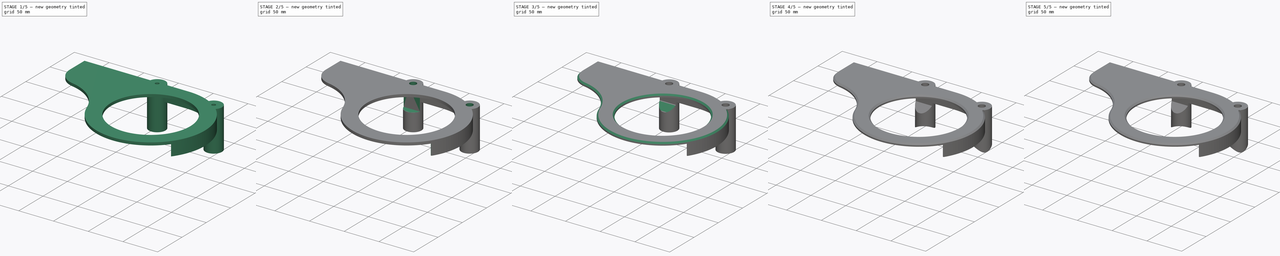
[diagram: build sequence overview — one tinted view per stage of 5, left to right]
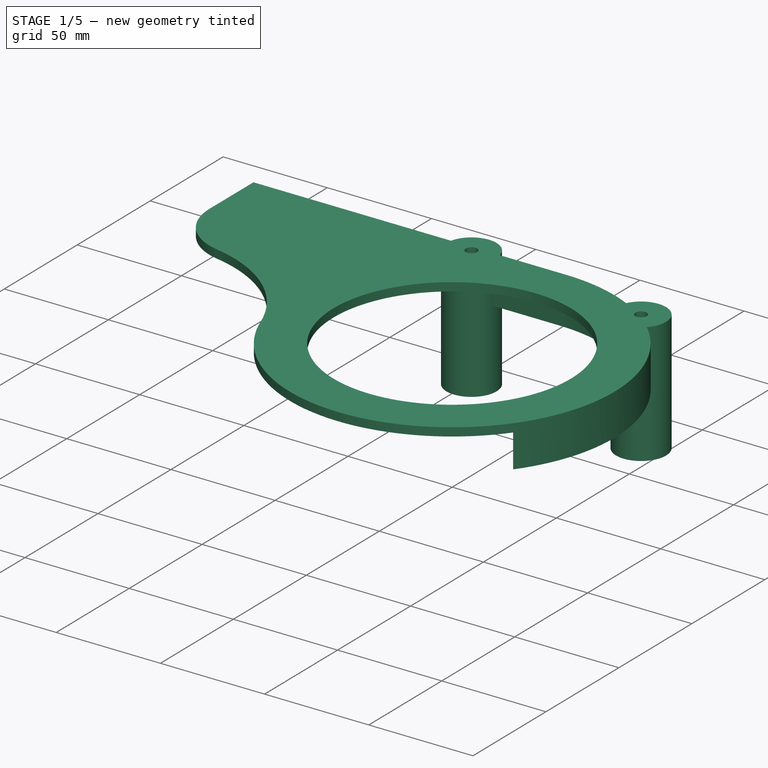
[diagram: stage 1 of 5 — iso view after this stage's code; geometry added in this stage tinted green]
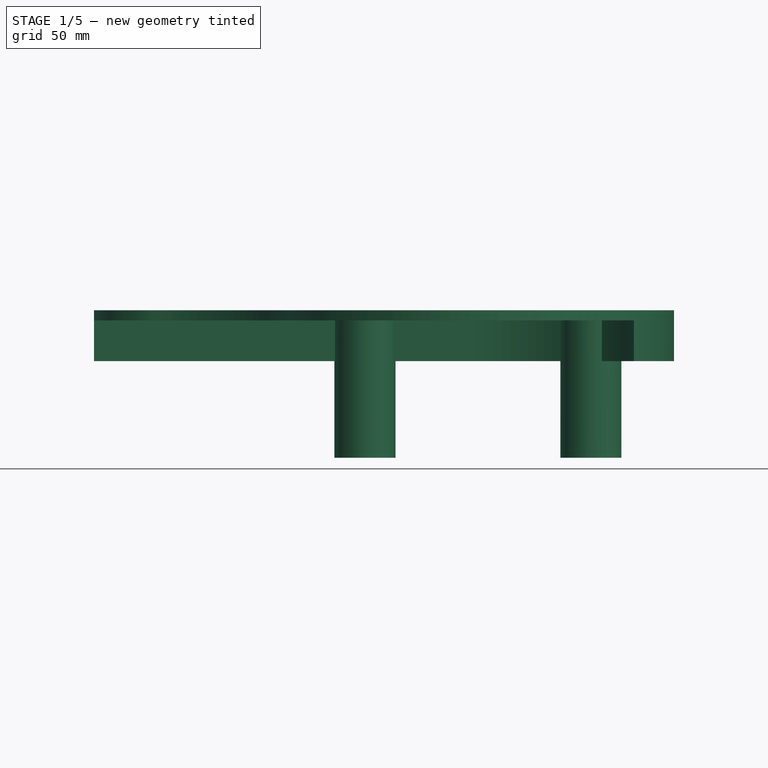
[diagram: stage 1 of 5 — front view after this stage's code; geometry added in this stage tinted green]
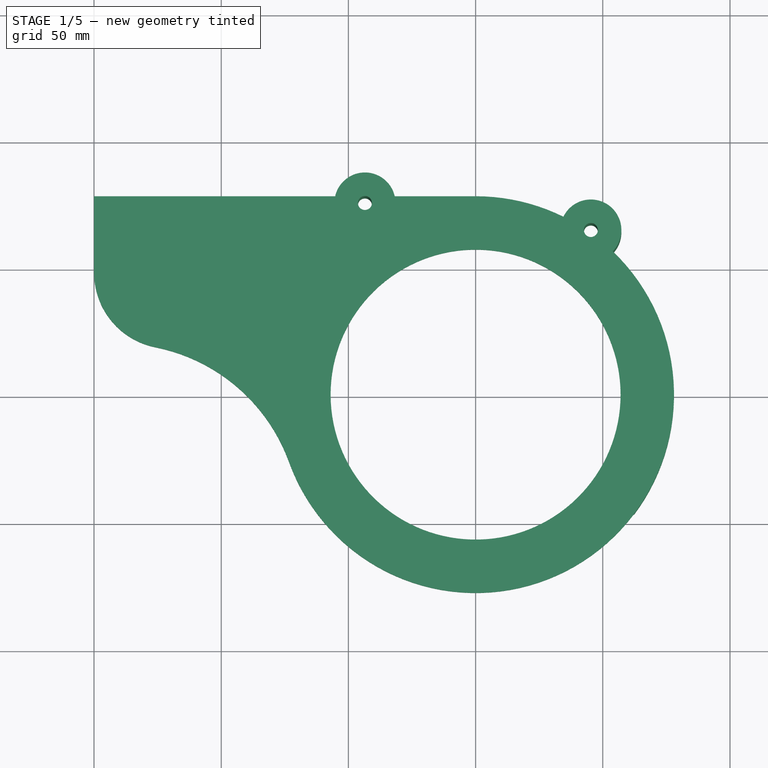
[diagram: stage 1 of 5 — top view after this stage's code; geometry added in this stage tinted green]
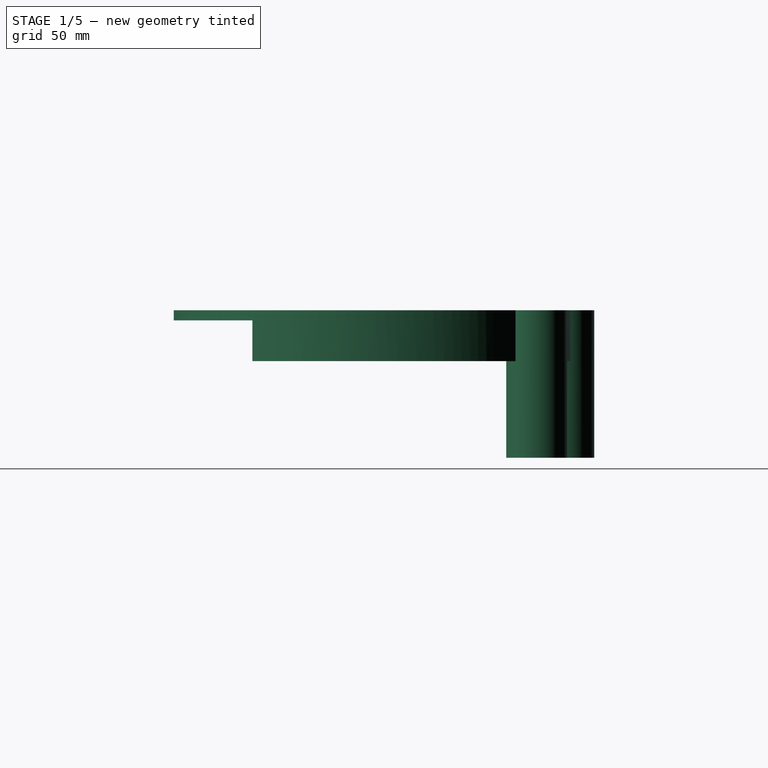
[diagram: stage 1 of 5 — right view after this stage's code; geometry added in this stage tinted green]
FCSTD DOCUMENT  (FreeCAD 0.19R)
Label: R5
License: All rights reserved
LicenseURL: http://en.wikipedia.org/wiki/All_rights_reserved
objects: Sketcher::SketchObject×8, PartDesign::Pocket×6, Part::Cylinder×4, PartDesign::Chamfer×4, PartDesign::Pad×2, Part::MultiFuse×2, Part::Cut×2, PartDesign::Fillet×1, PartDesign::Body×1
note: 43 computed .brp shape members not serialized (recipe doc carries the construction recipe); baked Part::Feature solids carry a one-line shape summary decoded from their .brp

FEATURE [Sketcher::SketchObject] Sketch
  FullyConstrained = true
  MapMode = 5
  Support = -> [XY_Plane]
  sketch-geometry (10):
    g0: LineSegment StartX=0 StartY=0 StartZ=0 EndX=121.094 EndY=169.768 EndZ=0
    g1: LineSegment StartX=-81.2548 StartY=143.617 StartZ=0 EndX=0 EndY=0 EndZ=0
    g2: Circle CenterX=0 CenterY=0 CenterZ=0 NormalX=0 NormalY=0 NormalZ=1 AngleXU=0 Radius=73
    g3: LineSegment StartX=-228.06 StartY=73 StartZ=0 EndX=0 EndY=73 EndZ=0
    g4: LineSegment StartX=2.39e-14 StartY=78 StartZ=0 EndX=-150 EndY=78 EndZ=0
    g5: ArcOfCircle CenterX=0 CenterY=0 CenterZ=0 NormalX=0 NormalY=0 NormalZ=1 AngleXU=0 Radius=78 StartAngle=3.48916 EndAngle=7.85398
    g6: LineSegment StartX=-150 StartY=78 StartZ=0 EndX=-150 EndY=48 EndZ=0
    g7: ArcOfCircle CenterX=-120 CenterY=48 CenterZ=0 NormalX=0 NormalY=0 NormalZ=1 AngleXU=0 Radius=30 StartAngle=3.14159 EndAngle=4.51567
    g8: ArcOfCircle CenterX=-139.648 CenterY=-50.5912 CenterZ=0 NormalX=0 NormalY=0 NormalZ=1 AngleXU=0 Radius=70.53 StartAngle=0.347568 EndAngle=1.37408
    g9: Circle CenterX=0 CenterY=0 CenterZ=0 NormalX=0 NormalY=0 NormalZ=1 AngleXU=0 Radius=57
  constraints (28):
    c: Coincident(g0,g-1)
    c: Coincident(g1,g-1)
    c: Angle(g1) = -1.05592
    c: Angle(g0,g1) = 1.13446
    c: Coincident(g2,g-1)
    c: Radius(g2) = 73
    c: Tangent(g3,g2)
    c: Angle(g3) = 0
    c: PointOnObject(g4,g-2)
    c: Coincident(g5,g-1)
    c: Coincident(g5,g4)
    c: Radius(g5) = 78
    c: Coincident(g6,g4)
    c: Vertical(g6)
    c: Tangent(g5,g8) = 1.5708
    c: Tangent(g8,g7) = 1.5708
    c: Tangent(g7,g6) = -1.5708
    c: Distance(g4) = 150
    c: Radius(g7) = 30
    c: Radius(g8) = 70.53
    c: Horizontal(g4)
    c: Distance(g6) = 30
    c: Distance(g0) = 208.53
    c: Distance(g1) = 165.01
    c: Distance(g3) = 228.06
    c: PointOnObject(g3,g-2)
    c: Coincident(g9,g5)
    c: Radius(g9) = 57
FEATURE [PartDesign::Pad] Pad
  Direction = (1,1,1)
  Length = 20
  Length2 = 100
  Profile = -> Sketch
  Type = 0
FEATURE [Sketcher::SketchObject] Sketch001
  FullyConstrained = true
  MapMode = 5
  Placement = pos=(0,0,0) rot=(1,0,0;3.14159rad)
  Support = -> [Pad]
  sketch-geometry (4):
    g0: LineSegment StartX=-300 StartY=-73 StartZ=0 EndX=0 EndY=-73 EndZ=0
    g1: ArcOfCircle CenterX=0 CenterY=0 CenterZ=0 NormalX=0 NormalY=0 NormalZ=1 AngleXU=0 Radius=73 StartAngle=4.71239 EndAngle=6.57087
    g2: LineSegment StartX=70 StartY=20.7123 StartZ=0 EndX=34.9593 EndY=139.137 EndZ=0
    g3: LineSegment StartX=34.9593 StartY=139.137 StartZ=0 EndX=-300 EndY=-73 EndZ=0
  constraints (11):
    c: PointOnObject(g0,g-2)
    c: Horizontal(g0)
    c: Coincident(g1,g-1)
    c: Coincident(g1,g0)
    c: DistanceX(g1) = 70
    c: Radius(g1) = 73
    c: Tangent(g1,g2) = -1.5708
    c: Coincident(g2,g3)
    c: Coincident(g3,g0)
    c: Distance(g2) = 123.5
    c: Distance(g0) = 300
FEATURE [PartDesign::Pocket] Pocket
  BaseFeature = -> Pad
  Length = 16
  Length2 = 100
  Profile = -> Sketch001
  Type = 0
FEATURE [Sketcher::SketchObject] Sketch002
  FullyConstrained = true
  MapMode = 5
  Placement = pos=(0,0,20) rot=(0,0,1;0rad)
  Support = -> [Pocket]
  sketch-geometry (4):
    g0: LineSegment StartX=-75 StartY=129.904 StartZ=0 EndX=0 EndY=0 EndZ=0
    g1: LineSegment StartX=0 StartY=0 StartZ=0 EndX=86.0365 EndY=122.873 EndZ=0
    g2: Circle CenterX=-43.5 CenterY=75.3442 CenterZ=0 NormalX=0 NormalY=0 NormalZ=1 AngleXU=0 Radius=12
    g3: Circle CenterX=45.3125 CenterY=64.713 CenterZ=0 NormalX=0 NormalY=0 NormalZ=1 AngleXU=0 Radius=12
  constraints (12):
    c: Coincident(g0,g-1)
    c: Angle(g0) = -1.0472
    c: Coincident(g1,g-1)
    c: Angle(g1,g0) = 1.13446
    c: Distance(g1) = 150
    c: Distance(g0) = 150
    c: Diameter(g3) = 24
    c: Equal(g3,g2)
    c: PointOnObject(g2,g0)
    c: PointOnObject(g3,g1)
    c: Distance(g-1,g3) = 79
    c: Distance(g-1,g2) = 87
FEATURE [PartDesign::Pad] Pad001
  BaseFeature = -> Pocket
  Direction = (1,1,1)
  Length = 58
  Length2 = 100
  Profile = -> Sketch002
  Reversed = true
  Type = 0
FEATURE [Sketcher::SketchObject] Sketch003
  ExternalGeometry = -> [Pad001]
  FullyConstrained = true
  MapMode = 5
  Placement = pos=(0,0,20) rot=(0,0,1;0rad)
  Support = -> [Pad001]
  sketch-geometry (2):
    g0: Circle CenterX=-43.5 CenterY=75.3442 CenterZ=0 NormalX=0 NormalY=0 NormalZ=1 AngleXU=0 Radius=2.75
    g1: Circle CenterX=45.3125 CenterY=64.713 CenterZ=0 NormalX=0 NormalY=0 NormalZ=1 AngleXU=0 Radius=2.75
  constraints (4):
    c: Diameter(g0) = 5.5
    c: Equal(g0,g1)
    c: Coincident(g0,g-3)
    c: Coincident(g1,g-4)
FEATURE [PartDesign::Pocket] Pocket001
  BaseFeature = -> Pad001
  Length = 5
  Length2 = 100
  Profile = -> Sketch003
  Type = 1
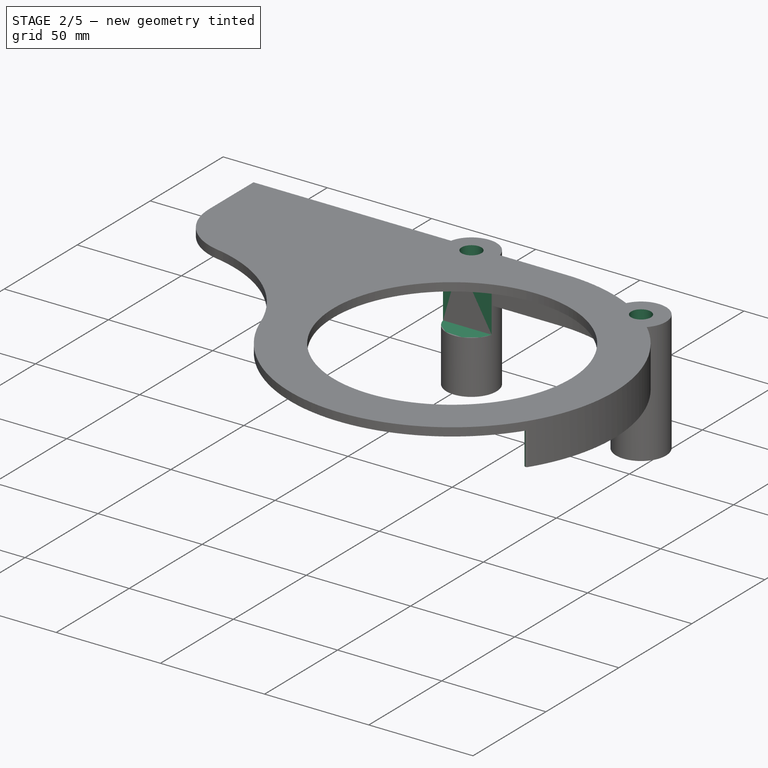
[diagram: stage 2 of 5 — iso view after this stage's code; geometry added in this stage tinted green]
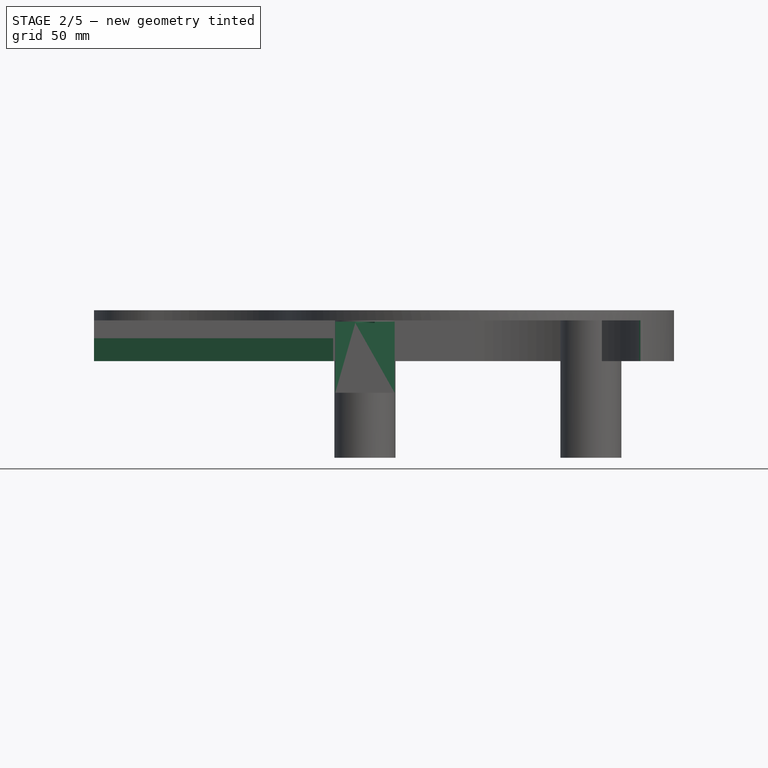
[diagram: stage 2 of 5 — front view after this stage's code; geometry added in this stage tinted green]
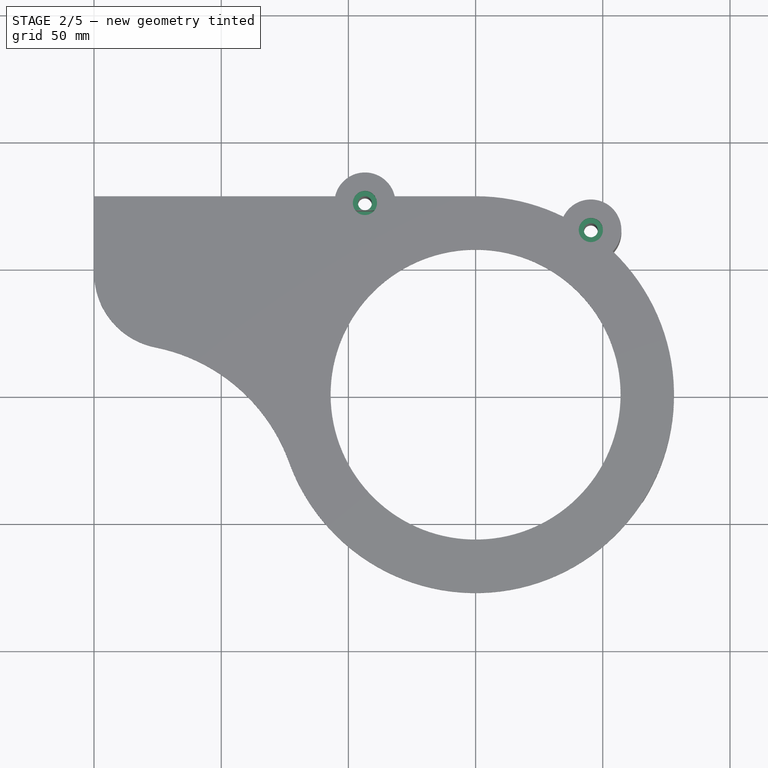
[diagram: stage 2 of 5 — top view after this stage's code; geometry added in this stage tinted green]
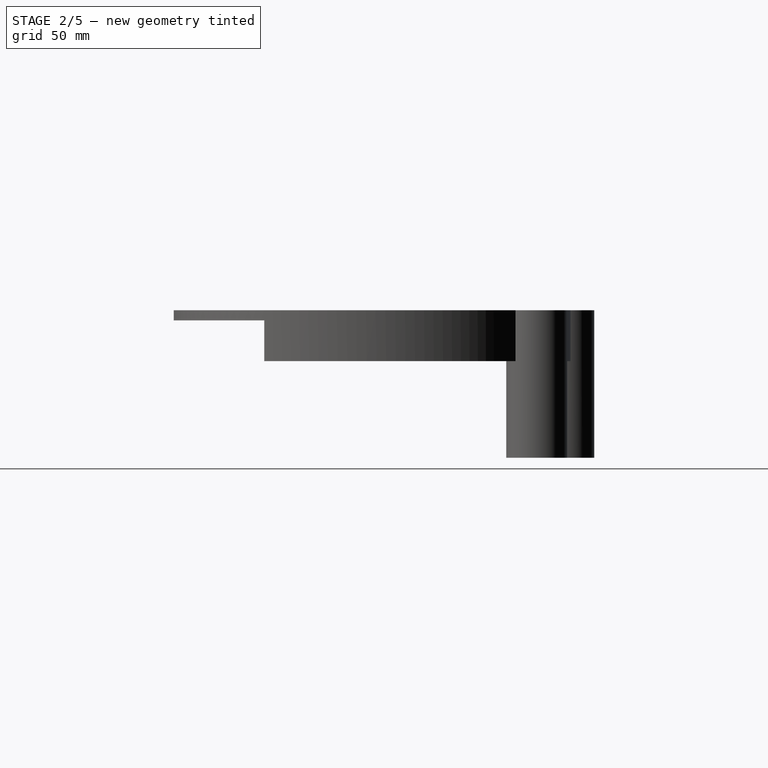
[diagram: stage 2 of 5 — right view after this stage's code; geometry added in this stage tinted green]
FEATURE [Sketcher::SketchObject] Sketch004
  ExternalGeometry = -> [Pocket001]
  FullyConstrained = true
  MapMode = 5
  Placement = pos=(0,0,20) rot=(0,0,1;0rad)
  Support = -> [Pocket001]
  sketch-geometry (2):
    g0: Circle CenterX=45.3125 CenterY=64.713 CenterZ=0 NormalX=0 NormalY=0 NormalZ=1 AngleXU=0 Radius=4.75
    g1: Circle CenterX=-43.5 CenterY=75.3442 CenterZ=0 NormalX=0 NormalY=0 NormalZ=1 AngleXU=0 Radius=4.75
  constraints (4):
    c: Diameter(g1) = 9.5
    c: Coincident(g1,g-4)
    c: Coincident(g0,g-5)
    c: Diameter(g0) = 9.5
FEATURE [PartDesign::Pocket] Pocket002
  BaseFeature = -> Pocket001
  Length = 5
  Length2 = 100
  Profile = -> Sketch004
  Type = 0
FEATURE [Sketcher::SketchObject] Sketch005
  ExternalGeometry = -> [Pocket002]
  FullyConstrained = false
  MapMode = 5
  Placement = pos=(-150,0,0) rot=(0.57735,-0.57735,-0.57735;2.0944rad)
  Support = -> [Pocket002]
  sketch-geometry (4):
    g0: LineSegment StartX=-72.5 StartY=15.5 StartZ=0 EndX=-60.5 EndY=15.5 EndZ=0
    g1: LineSegment StartX=-60.5 StartY=15.5 StartZ=0 EndX=-60.5 EndY=-12.4243 EndZ=0
    g2: LineSegment StartX=-60.5 StartY=-12.4243 StartZ=0 EndX=-72.5 EndY=-12.4243 EndZ=0
    g3: LineSegment StartX=-72.5 StartY=-12.4243 StartZ=0 EndX=-72.5 EndY=15.5 EndZ=0
  constraints (11):
    c: Coincident(g0,g1)
    c: Coincident(g1,g2)
    c: Coincident(g2,g3)
    c: Coincident(g3,g0)
    c: Horizontal(g0)
    c: Horizontal(g2)
    c: Vertical(g1)
    c: Vertical(g3)
    c: Distance(g2) = 12
    c: DistanceX(g-4,g0) = 0.5
    c: Distance(g0,g-3) = 0.5
FEATURE [PartDesign::Pocket] Pocket003
  BaseFeature = -> Pocket002
  Length = 124
  Length2 = 100
  Profile = -> Sketch005
  Type = 0
FEATURE [Sketcher::SketchObject] Sketch008
  FullyConstrained = false
  MapMode = 5
  Placement = pos=(-150,0,0) rot=(0.57735,-0.57735,-0.57735;2.0944rad)
  Support = -> [Pocket003]
  sketch-geometry (3):
    g0: LineSegment StartX=-71.1278 StartY=15.2392 StartZ=0 EndX=-76.5059 EndY=-2.72316 EndZ=0
    g1: LineSegment StartX=-76.5059 StartY=-2.72316 StartZ=0 EndX=-67.7386 EndY=-2.72316 EndZ=0
    g2: LineSegment StartX=-67.7386 StartY=-2.72316 StartZ=0 EndX=-71.1278 EndY=15.2392 EndZ=0
  constraints (4):
    c: Coincident(g0,g1)
    c: Horizontal(g1)
    c: Coincident(g1,g2)
    c: Coincident(g2,g0)
FEATURE [PartDesign::Pocket] Pocket004
  BaseFeature = -> Pocket003
  Length = 94
  Length2 = 100
  Profile = -> Sketch008
  Type = 0
FEATURE [PartDesign::Fillet] Fillet
  Base = -> Pocket004 [Edge77]
  BaseFeature = -> Pocket004
  Radius = 1
  SupportTransform = false
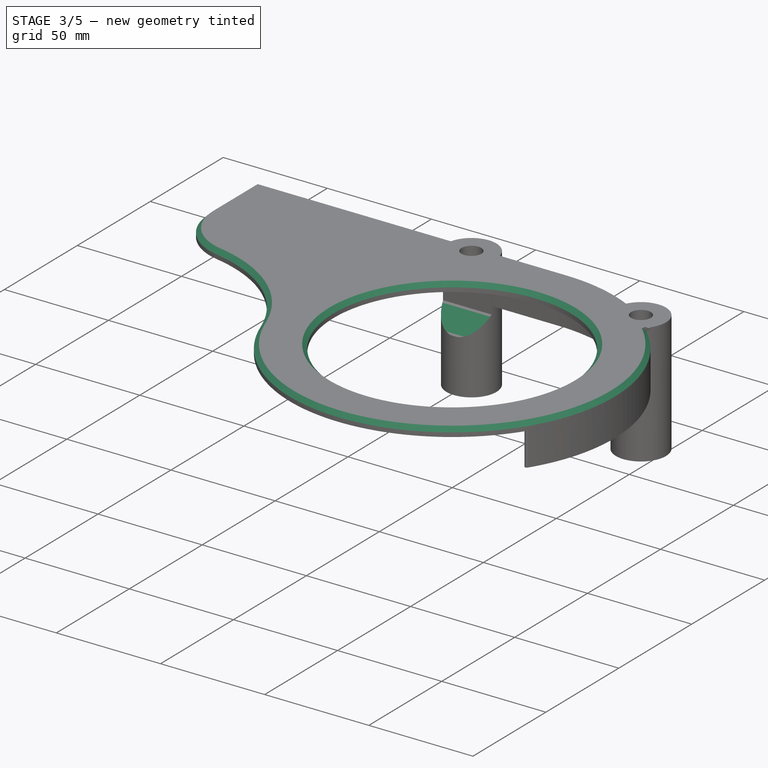
[diagram: stage 3 of 5 — iso view after this stage's code; geometry added in this stage tinted green]
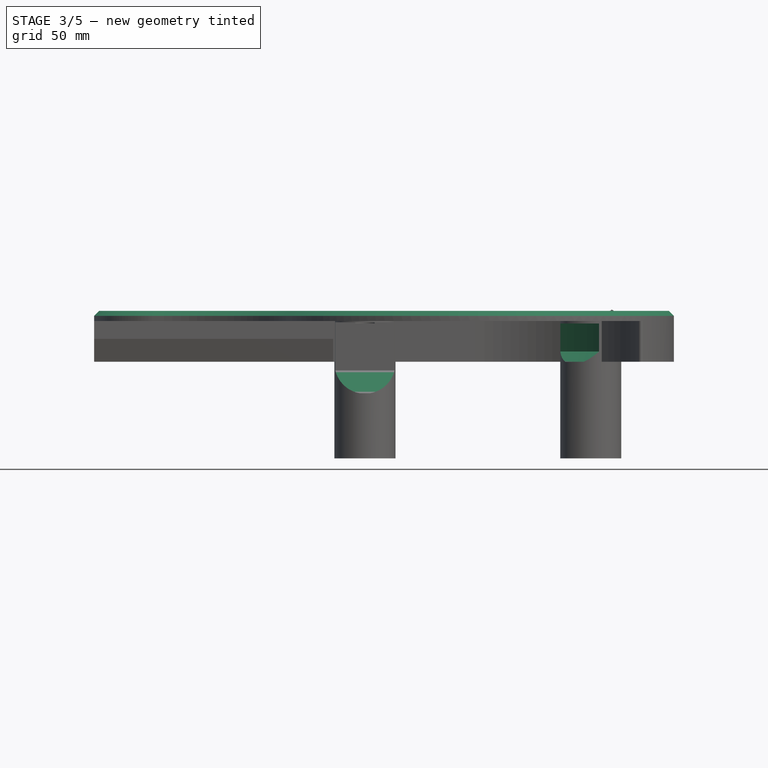
[diagram: stage 3 of 5 — front view after this stage's code; geometry added in this stage tinted green]
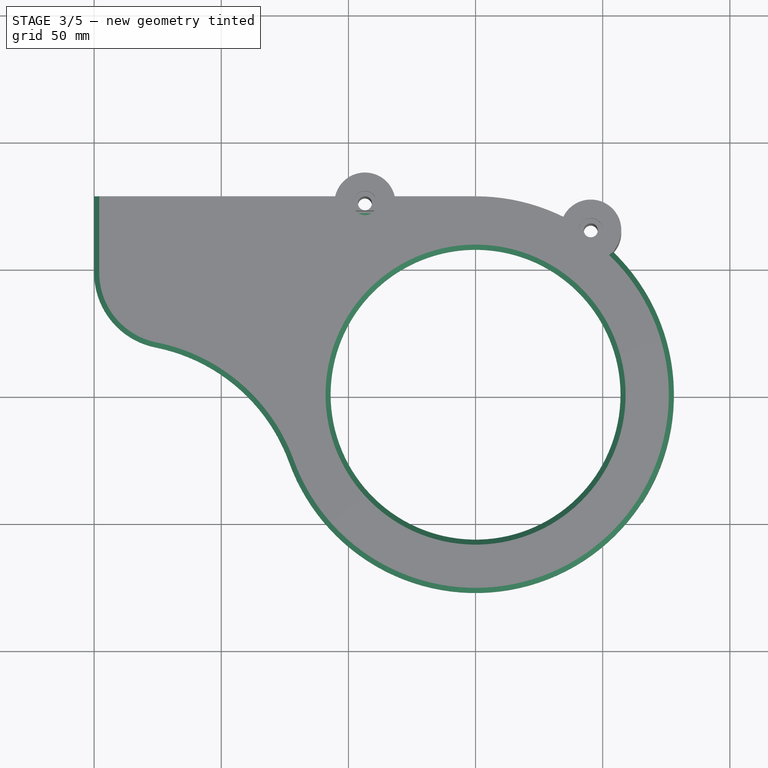
[diagram: stage 3 of 5 — top view after this stage's code; geometry added in this stage tinted green]
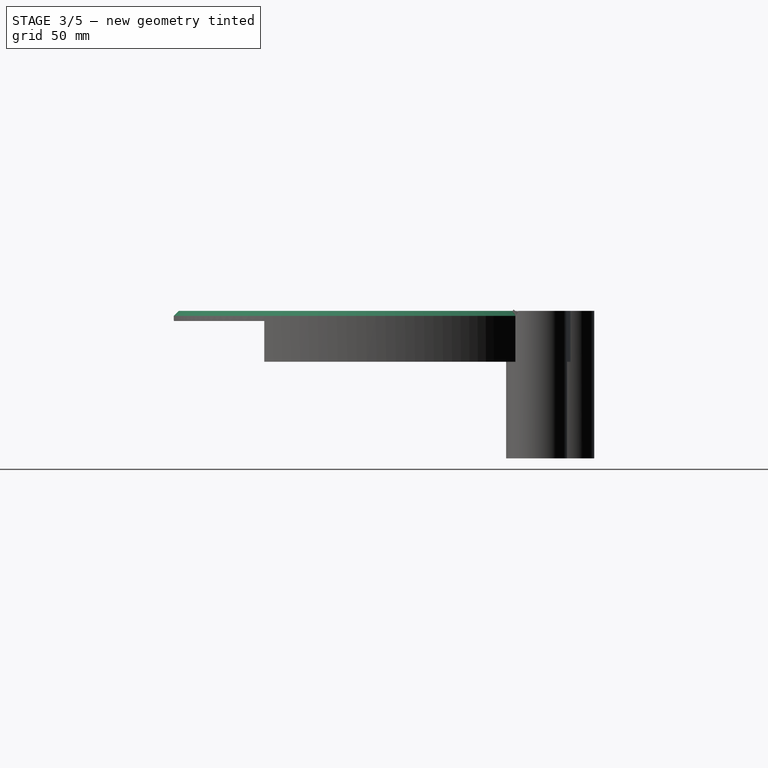
[diagram: stage 3 of 5 — right view after this stage's code; geometry added in this stage tinted green]
FEATURE [PartDesign::Pocket] Pocket005
  BaseFeature = -> Fillet
  Length = 15
  Length2 = 100
  Profile = -> Sketch006
  Type = 0
FEATURE [PartDesign::Chamfer] Chamfer
  Angle = 45
  Base = -> Pocket005 [Edge83]
  BaseFeature = -> Pocket005
  ChamferType = 0
  FlipDirection = false
  Size = 4
  Size2 = 1
  SupportTransform = false
FEATURE [PartDesign::Chamfer] Chamfer001
  Angle = 45
  Base = -> Chamfer [Edge107]
  BaseFeature = -> Chamfer
  ChamferType = 0
  FlipDirection = false
  Size = 9
  Size2 = 1
  SupportTransform = false
FEATURE [PartDesign::Chamfer] Chamfer002
  Angle = 45
  Base = -> Chamfer001 [Edge91]
  BaseFeature = -> Chamfer001
  ChamferType = 0
  FlipDirection = false
  Size = 2
  Size2 = 1
  SupportTransform = false
FEATURE [PartDesign::Chamfer] Chamfer003
  Angle = 45
  Base = -> Chamfer002 [Edge4]
  BaseFeature = -> Chamfer002
  ChamferType = 0
  FlipDirection = false
  Size = 2
  Size2 = 1
  SupportTransform = false
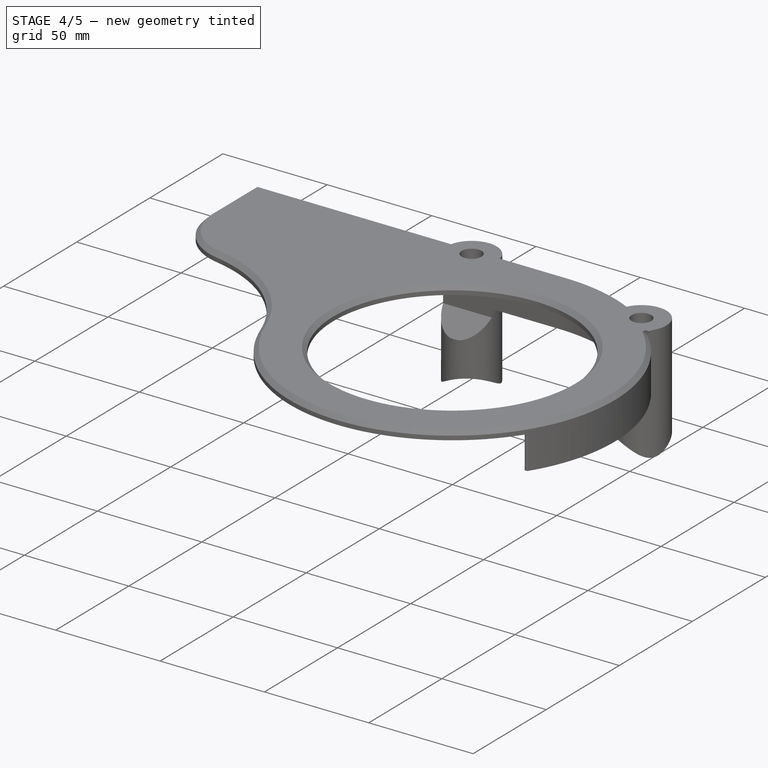
[diagram: stage 4 of 5 — iso view after this stage's code; geometry added in this stage tinted green]
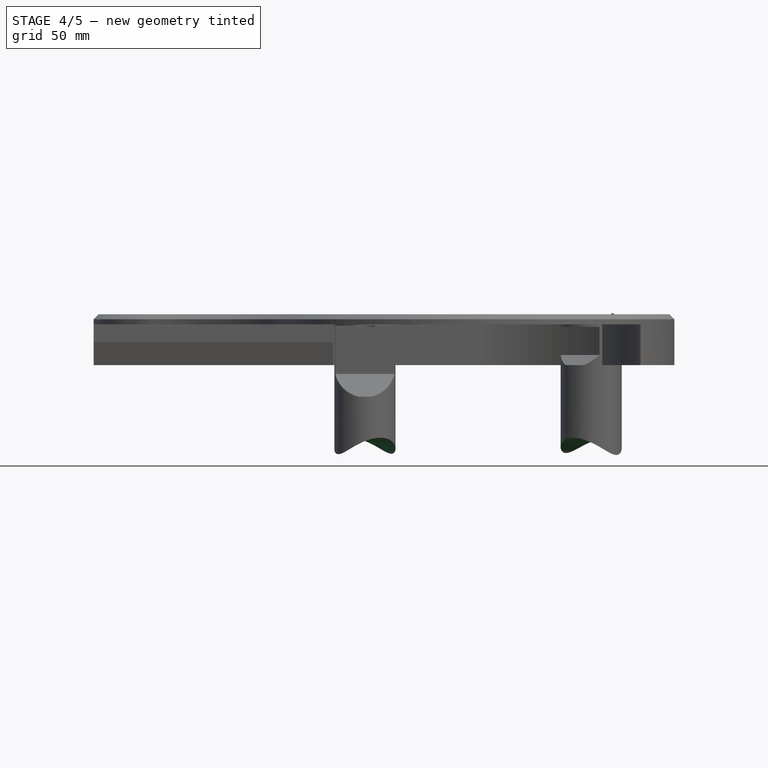
[diagram: stage 4 of 5 — front view after this stage's code; geometry added in this stage tinted green]
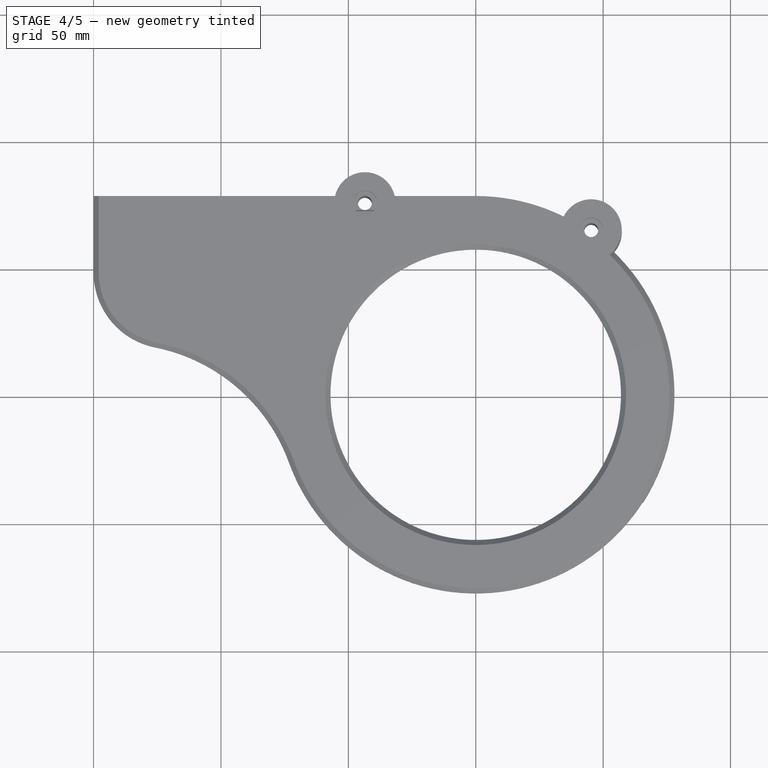
[diagram: stage 4 of 5 — top view after this stage's code; geometry added in this stage tinted green]
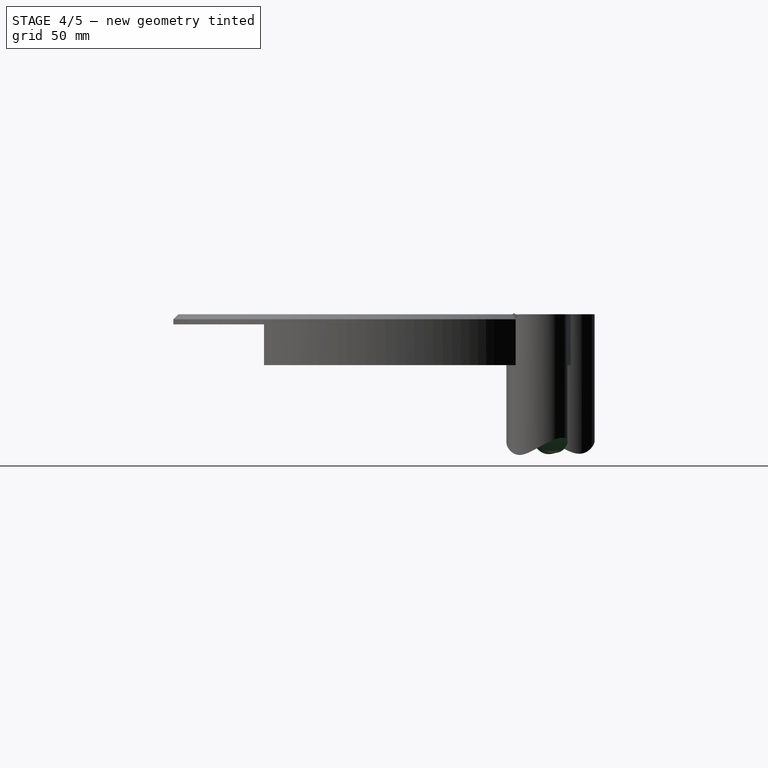
[diagram: stage 4 of 5 — right view after this stage's code; geometry added in this stage tinted green]
FEATURE [Part::Cylinder] Cylinder
  Angle = 360
  AttacherType = Attacher::AttachEngine3D
  Height = 100
  Placement = pos=(0,0,-43) rot=(-0.820998,0.570931,0;1.5708rad)
  Radius = 14.5
FEATURE [Part::Cylinder] Cylinder001
  Angle = 360
  AttacherType = Attacher::AttachEngine3D
  Height = 100
  Placement = pos=(0,0,-43) rot=(-0.866355,-0.499428,0;1.5708rad)
  Radius = 14.5
FEATURE [Sketcher::SketchObject] Sketch006
  FullyConstrained = true
  MapMode = 5
  Placement = pos=(0,0,0) rot=(1,0,0;3.14159rad)
  sketch-geometry (3):
    g0: ArcOfCircle CenterX=0 CenterY=0 CenterZ=0 NormalX=0 NormalY=0 NormalZ=1 AngleXU=0 Radius=72 StartAngle=5.0979 EndAngle=5.50224
    g1: LineSegment StartX=27.0745 StartY=-66.7156 StartZ=0 EndX=19.3465 EndY=-29.04 EndZ=0
    g2: LineSegment StartX=19.3465 StartY=-29.04 StartZ=0 EndX=51.1378 EndY=-50.6845 EndZ=0
  constraints (9):
    c: Coincident(g0,g-1)
    c: Coincident(g0,g1)
    c: Coincident(g1,g2)
    c: Coincident(g2,g0)
    c: Distance(g0,g0) = 72
    c: Equal(g1,g2)
    c: Angle(g1,g2) = 0.770737
    c: DistanceY(g1) = -29.04
    c: Distance(g2) = 38.46
FEATURE [Part::MultiFuse] Fusion
  Shapes = -> [Cylinder001,Cylinder]
FEATURE [PartDesign::Body] Body
  Group = -> [Sketch,Pad,Sketch001,Pocket,Sketch002,Pad001,Sketch003,Pocket001,Sketch004,Pocket002,Sketch005,Pocket003,Sketch006,Sketch008,Pocket004,Fillet,Pocket005,Chamfer,Chamfer001,Chamfer002,Chamfer003]
  Origin = -> Origin
  Tip = -> Chamfer003
FEATURE [Part::Cut] Cut
  Base = -> Chamfer003
  Tool = -> Fusion
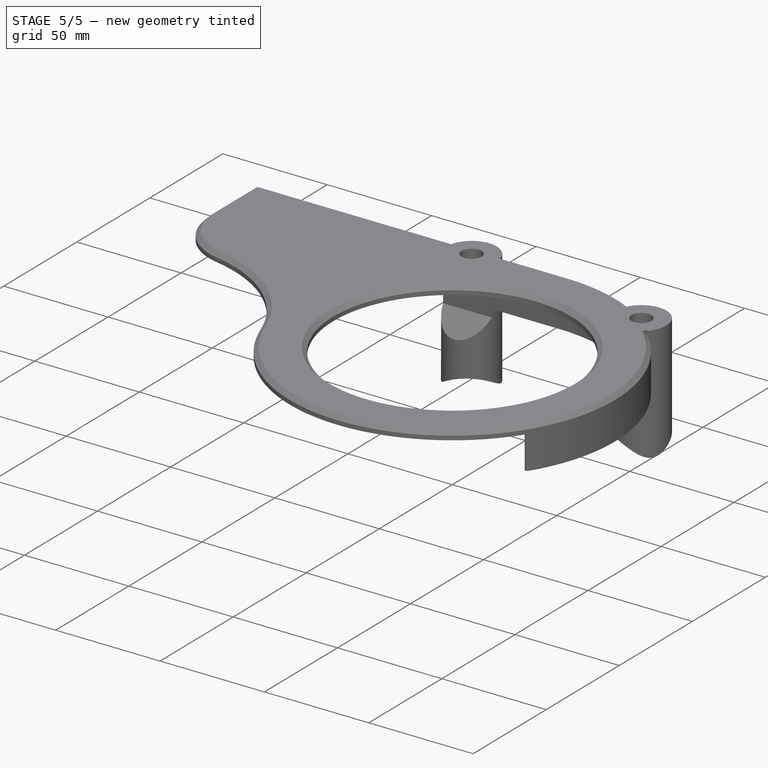
[diagram: stage 5 of 5 — iso view after this stage's code; geometry added in this stage tinted green]
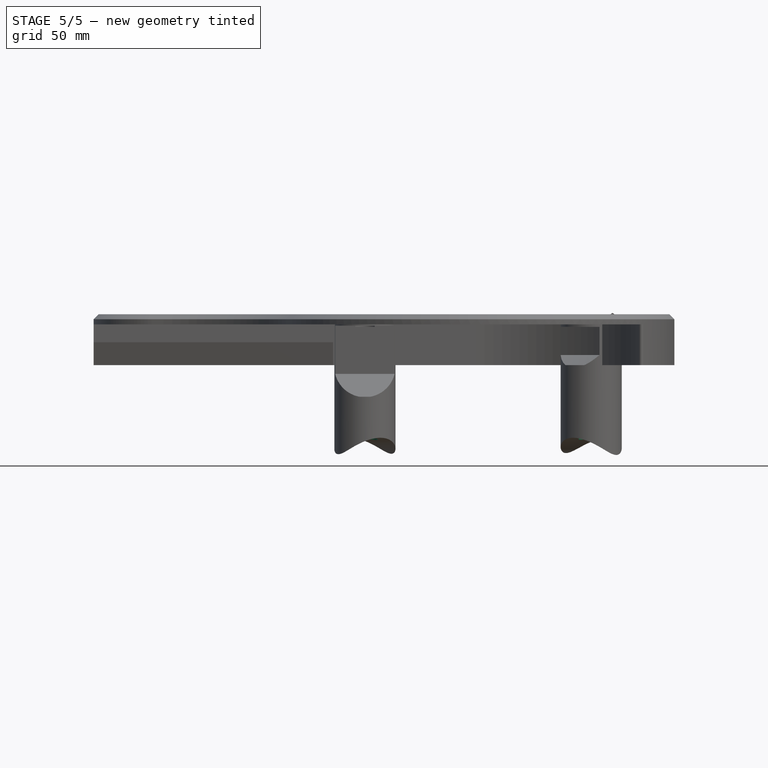
[diagram: stage 5 of 5 — front view after this stage's code; geometry added in this stage tinted green]
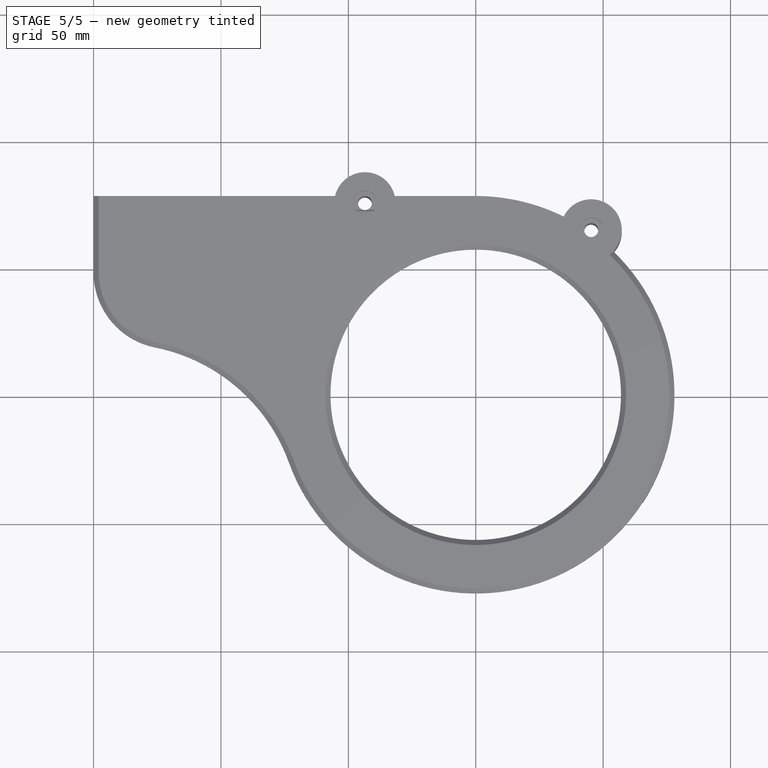
[diagram: stage 5 of 5 — top view after this stage's code; geometry added in this stage tinted green]
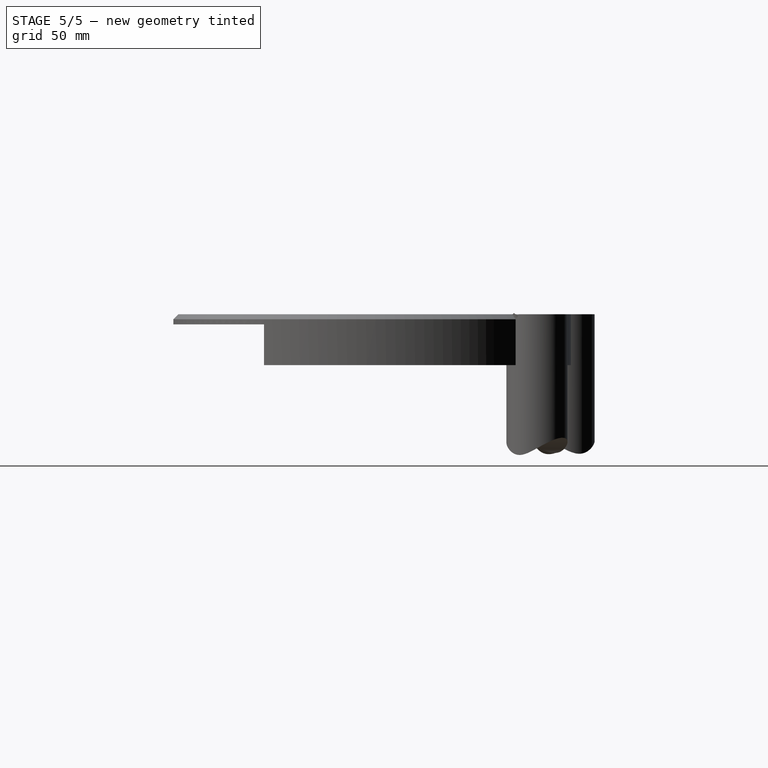
[diagram: stage 5 of 5 — right view after this stage's code; geometry added in this stage tinted green]
FEATURE [Part::Cylinder] Cylinder002
  Angle = 360
  AttacherType = Attacher::AttachEngine3D
  Height = 10
  Placement = pos=(-43.4,75.5,-34) rot=(0,0,1;0rad)
  Radius = 5
FEATURE [Part::Cylinder] Cylinder003
  Angle = 360
  AttacherType = Attacher::AttachEngine3D
  Height = 10
  Placement = pos=(45.3,64.5,-34) rot=(0,0,1;0rad)
  Radius = 5
FEATURE [Part::MultiFuse] Fusion001
  Shapes = -> [Cylinder002,Cylinder003]
FEATURE [Part::Cut] Cut001
  Base = -> Cut
  Tool = -> Fusion001
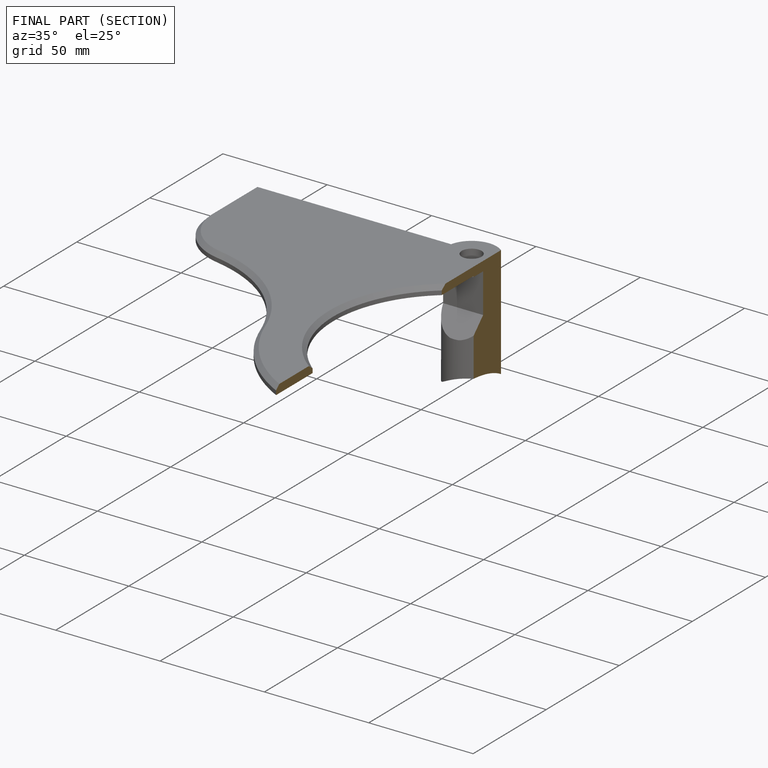
[diagram: finished part — half-section view (interior)]
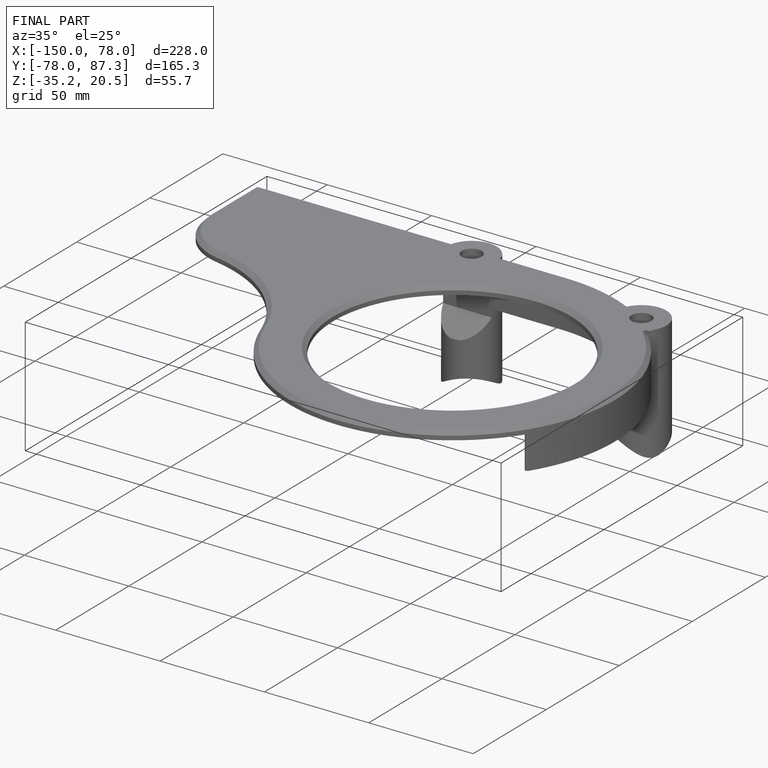
[diagram: finished part — iso view with bounding-box wireframe]
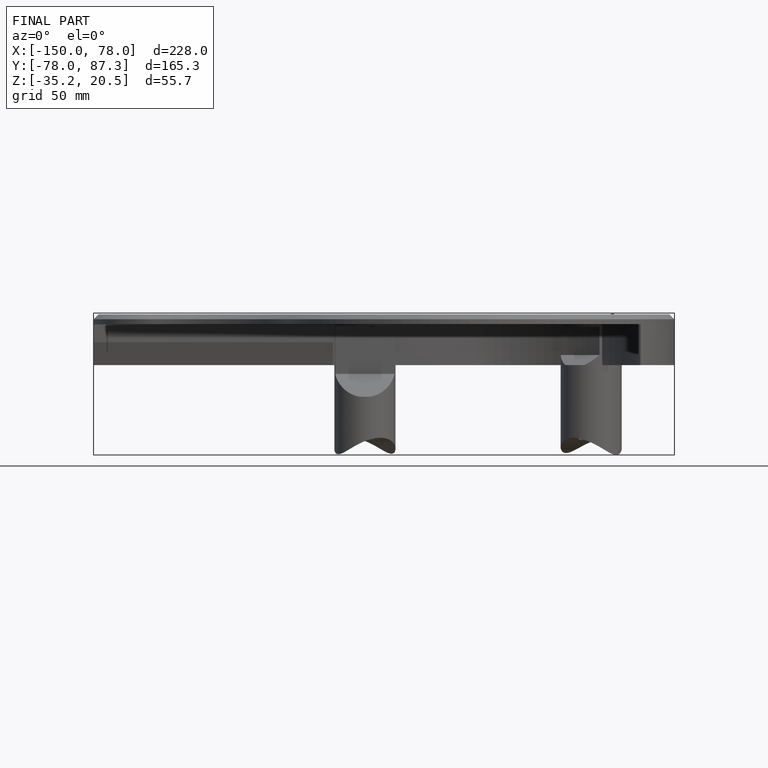
[diagram: finished part — front view with bounding-box wireframe]
